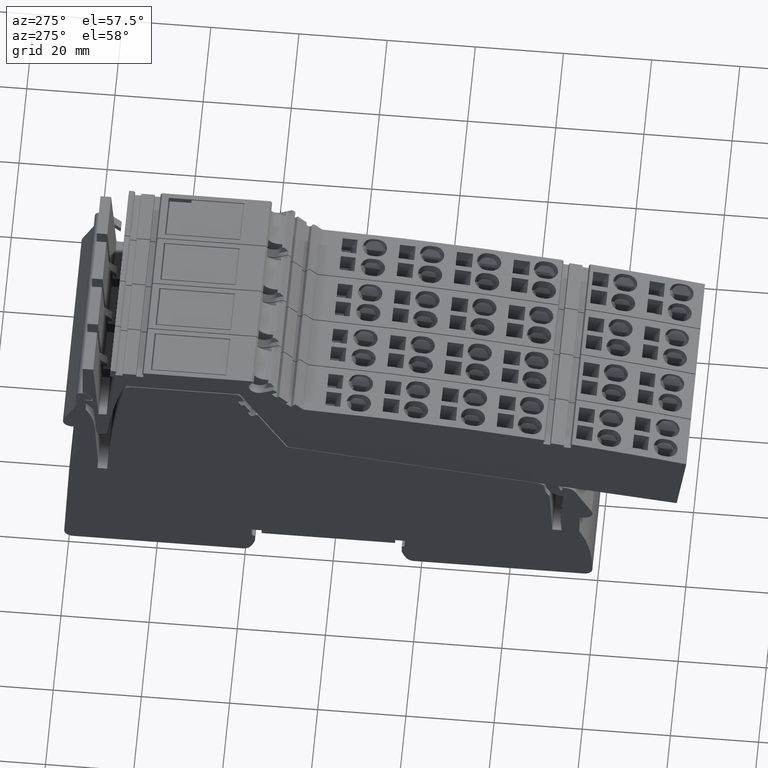
[diagram: clean part render]
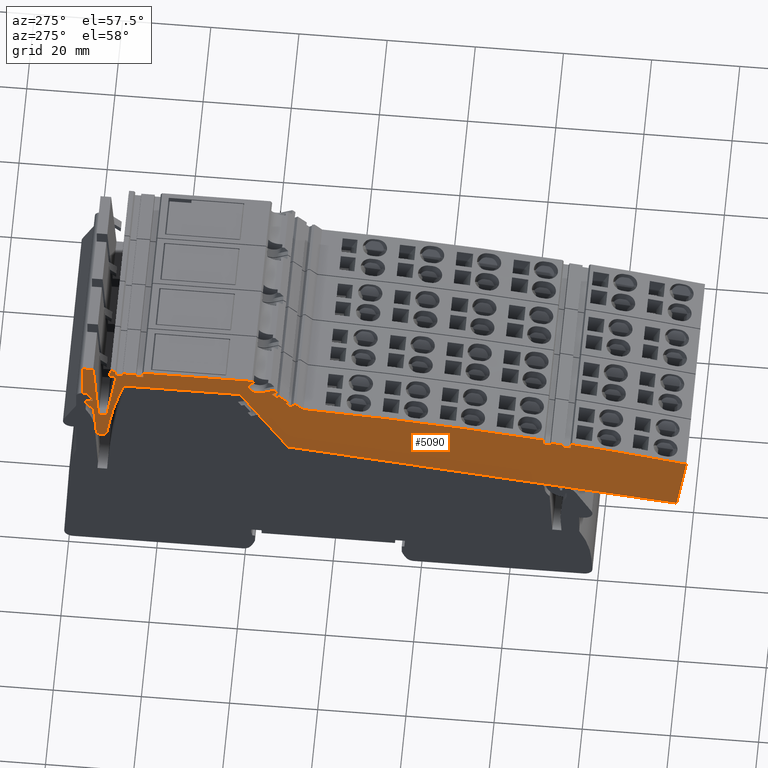
[diagram: same view with one face highlighted and labeled with its STEP entity id]
A machine part, auxiliary view. The second image highlights one B-rep face of the part: STEP entity #5090.
In plain terms, the highlighted planar face has unit normal (-1, 0, 0).
Its self-contained STEP definition (entity closure, byte-faithful):
#10=CARTESIAN_POINT('',(119.397054029924,63.6873748228642,-47.425));
#20=DIRECTION('',(0.,0.,-1.));
#30=DIRECTION('',(-1.,0.,0.));
#40=AXIS2_PLACEMENT_3D('',#10,#20,#30);
#50=PLANE('',#40);
#60=CARTESIAN_POINT('',(-3.14453621655468,-5.81476390429314,
-47.4250000000002));
#70=DIRECTION('',(0.130526192220205,-0.99144486137379,
-7.64748233166608E-34));
#80=VECTOR('',#70,1.);
#90=LINE('',#60,#80);
#100=CARTESIAN_POINT('',(-12.2138915265983,63.0738289916539,
-47.4250000000003));
#110=VERTEX_POINT('',#100);
#120=CARTESIAN_POINT('',(-10.0205226234212,46.4135381246434,
-47.4250000000003));
#130=VERTEX_POINT('',#120);
#140=EDGE_CURVE('',#110,#130,#90,.T.);
#150=ORIENTED_EDGE('',*,*,#140,.F.);
#160=CARTESIAN_POINT('',(73.6574236765249,57.4299487480429,
-47.4250000000002));
#170=DIRECTION('',(0.991444861373768,0.130526192220376,
2.46519032881566E-32));
#180=VECTOR('',#170,1.);
#190=LINE('',#160,#180);
#200=CARTESIAN_POINT('',(78.1684977957757,58.0238429226456,
-47.4250000000002));
#210=VERTEX_POINT('',#200);
#220=EDGE_CURVE('',#130,#210,#190,.T.);
#230=ORIENTED_EDGE('',*,*,#220,.F.);
#240=CARTESIAN_POINT('',(84.2029640194473,69.3730232537479,
-47.4250000000002));
#250=DIRECTION('',(0.469471562785745,0.882947592859004,
1.98252351633152E-18));
#260=VECTOR('',#250,1.);
#270=LINE('',#240,#260);
#280=CARTESIAN_POINT('',(89.0777240818256,78.5411135152798,
-47.4250000000003));
#290=VERTEX_POINT('',#280);
#300=EDGE_CURVE('',#210,#290,#270,.T.);
#310=ORIENTED_EDGE('',*,*,#300,.F.);
#320=CARTESIAN_POINT('',(70.878086107936,78.5411135152768,
-47.4250000000002));
#330=DIRECTION('',(1.,1.64951385883683E-13,1.14423563262215E-17));
#340=VECTOR('',#330,1.);
#350=LINE('',#320,#340);
#360=CARTESIAN_POINT('',(115.300602323951,78.5411135152842,
-47.4250000000002));
#370=VERTEX_POINT('',#360);
#380=EDGE_CURVE('',#290,#370,#350,.T.);
#390=ORIENTED_EDGE('',*,*,#380,.F.);
#400=CARTESIAN_POINT('',(14.9456973462107,48.6917743784001,
-47.4250000000003));
#410=DIRECTION('',(0.,0.,1.));
#420=DIRECTION('',(0.991444861373789,0.130526192220215,
-2.46519032881566E-32));
#430=AXIS2_PLACEMENT_3D('',#400,#410,#420);
#440=CIRCLE('',#430,104.7);
#450=CARTESIAN_POINT('',(118.749974332046,62.3578667038566,
-47.4250000000002));
#460=VERTEX_POINT('',#450);
#470=EDGE_CURVE('',#460,#370,#440,.T.);
#480=ORIENTED_EDGE('',*,*,#470,.T.);
#490=CARTESIAN_POINT('',(117.253565857008,73.7242175324348,
-47.4250000000002));
#500=DIRECTION('',(-0.130526192220215,0.991444861373789,
2.35317066351981E-33));
#510=VECTOR('',#500,1.);
#520=LINE('',#490,#510);
#530=CARTESIAN_POINT('',(119.252926235563,58.5375677142193,
-47.4250000000002));
#540=VERTEX_POINT('',#530);
#550=EDGE_CURVE('',#540,#460,#520,.T.);
#560=ORIENTED_EDGE('',*,*,#550,.T.);
#570=CARTESIAN_POINT('',(120.442660069212,58.6941991448836,
-47.4250000000003));
#580=DIRECTION('',(-2.46519032881566E-32,8.0118685686509E-32,1.));
#590=DIRECTION('',(0.991444861373789,0.130526192220215,
-2.46519032881566E-32));
#600=AXIS2_PLACEMENT_3D('',#570,#580,#590);
#610=CIRCLE('',#600,1.2);
#620=CARTESIAN_POINT('',(121.640090777098,58.6157153898078,
-47.4250000000002));
#630=VERTEX_POINT('',#620);
#640=EDGE_CURVE('',#540,#630,#610,.T.);
#650=ORIENTED_EDGE('',*,*,#640,.F.);
#660=CARTESIAN_POINT('',(122.677154255972,74.4382464910455,
-47.4250000000002));
#670=DIRECTION('',(0.0654031292299692,0.997858923238615,
2.18873597126985E-17));
#680=VECTOR('',#670,1.);
#690=LINE('',#660,#680);
#700=CARTESIAN_POINT('',(122.252118914927,67.9534603233625,
-47.4250000000002));
#710=VERTEX_POINT('',#700);
#720=EDGE_CURVE('',#630,#710,#690,.T.);
#730=ORIENTED_EDGE('',*,*,#720,.F.);
#740=CARTESIAN_POINT('',(65.194211177919,-0.045506208148737,
-47.4250000000002));
#750=DIRECTION('',(-0.642787609686413,-0.766044443119084,0.));
#760=VECTOR('',#750,1.);
#770=LINE('',#740,#760);
#780=CARTESIAN_POINT('',(124.130631128015,70.1921840020429,
-47.4250000000002));
#790=VERTEX_POINT('',#780);
#800=EDGE_CURVE('',#790,#710,#770,.T.);
#810=ORIENTED_EDGE('',*,*,#800,.T.);
#820=CARTESIAN_POINT('',(124.130631128027,-0.0455062081390309,
-47.4250000000002));
#830=DIRECTION('',(1.64895874732451E-13,-1.,0.));
#840=VECTOR('',#830,1.);
#850=LINE('',#820,#840);
#860=CARTESIAN_POINT('',(124.130631128015,71.3411135152857,
-47.4250000000002));
#870=VERTEX_POINT('',#860);
#880=EDGE_CURVE('',#870,#790,#850,.T.);
#890=ORIENTED_EDGE('',*,*,#880,.T.);
#900=CARTESIAN_POINT('',(71.8259840905664,71.3411135152774,
-47.4250000000002));
#910=DIRECTION('',(-1.,-1.58900670399476E-13,2.46519032881566E-32));
#920=VECTOR('',#910,1.);
#930=LINE('',#900,#920);
#940=CARTESIAN_POINT('',(122.474157435942,71.3411135152855,
-47.4250000000002));
#950=VERTEX_POINT('',#940);
#960=EDGE_CURVE('',#870,#950,#930,.T.);
#970=ORIENTED_EDGE('',*,*,#960,.F.);
#980=CARTESIAN_POINT('',(122.677154255972,74.4382464910455,
-47.4250000000002));
#990=DIRECTION('',(-0.0654031292299649,-0.997858923238615,
-2.18873597126979E-17));
#1000=VECTOR('',#990,1.);
#1010=LINE('',#980,#1000);
#1020=CARTESIAN_POINT('',(122.533322986182,72.2438053734526,
-47.4250000000002));
#1030=VERTEX_POINT('',#1020);
#1040=EDGE_CURVE('',#1030,#950,#1010,.T.);
#1050=ORIENTED_EDGE('',*,*,#1040,.T.);
#1060=CARTESIAN_POINT('',(77.6200827099972,27.3305650972566,
-47.4250000000003));
#1070=DIRECTION('',(0.707106781186456,0.707106781186639,
-2.44267117772998E-17));
#1080=VECTOR('',#1070,1.);
#1090=LINE('',#1060,#1080);
#1100=CARTESIAN_POINT('',(124.730631128015,74.4411135152858,
-47.4250000000002));
#1110=VERTEX_POINT('',#1100);
#1120=EDGE_CURVE('',#1030,#1110,#1090,.T.);
#1130=ORIENTED_EDGE('',*,*,#1120,.F.);
#1140=CARTESIAN_POINT('',(124.730631128014,74.7085918499881,
-47.4250000000002));
#1150=DIRECTION('',(-1.62092561595273E-13,1.,1.38777878078148E-17));
#1160=VECTOR('',#1150,1.);
#1170=LINE('',#1140,#1160);
#1180=CARTESIAN_POINT('',(124.730631128013,84.4411135152858,
-47.4250000000002));
#1190=VERTEX_POINT('',#1180);
#1200=EDGE_CURVE('',#1110,#1190,#1170,.T.);
#1210=ORIENTED_EDGE('',*,*,#1200,.F.);
#1220=CARTESIAN_POINT('',(70.1013363721694,84.4411135152763,
-47.4250000000002));
#1230=DIRECTION('',(-1.,-1.73999703534378E-13,-1.14423563262215E-17));
#1240=VECTOR('',#1230,1.);
#1250=LINE('',#1220,#1240);
#1260=CARTESIAN_POINT('',(122.330631128012,84.4411135152853,
-47.4250000000002));
#1270=VERTEX_POINT('',#1260);
#1280=EDGE_CURVE('',#1190,#1270,#1250,.T.);
#1290=ORIENTED_EDGE('',*,*,#1280,.F.);
#1300=CARTESIAN_POINT('',(116.793085509801,-0.0455062081402389,
-47.4250000000002));
#1310=DIRECTION('',(0.0654031292299576,0.997858923238616,0.));
#1320=VECTOR('',#1310,1.);
#1330=LINE('',#1300,#1320);
#1340=CARTESIAN_POINT('',(121.118077065934,65.9411135152853,
-47.4250000000002));
#1350=VERTEX_POINT('',#1340);
#1360=EDGE_CURVE('',#1350,#1270,#1330,.T.);
#1370=ORIENTED_EDGE('',*,*,#1360,.T.);
#1380=CARTESIAN_POINT('',(-0.345653967707037,65.9411135152659,
-47.4250000000002));
#1390=DIRECTION('',(1.,1.59622315365482E-13,0.));
#1400=VECTOR('',#1390,1.);
#1410=LINE('',#1380,#1400);
#1420=CARTESIAN_POINT('',(119.286859900429,65.941113515285,
-47.4250000000002));
#1430=VERTEX_POINT('',#1420);
#1440=EDGE_CURVE('',#1430,#1350,#1410,.T.);
#1450=ORIENTED_EDGE('',*,*,#1440,.T.);
#1460=CARTESIAN_POINT('',(127.974163194379,-0.0455062081384057,
-47.4250000000002));
#1470=DIRECTION('',(0.130526192220215,-0.991444861373789,
-2.35317066351981E-33));
#1480=VECTOR('',#1470,1.);
#1490=LINE('',#1460,#1480);
#1500=CARTESIAN_POINT('',(117.16725468927,82.0411135152854,
-47.4250000000002));
#1510=VERTEX_POINT('',#1500);
#1520=EDGE_CURVE('',#1510,#1430,#1490,.T.);
#1530=ORIENTED_EDGE('',*,*,#1520,.T.);
#1540=CARTESIAN_POINT('',(70.4173023663801,82.0411135152725,
-47.4250000000002));
#1550=DIRECTION('',(-1.,-2.76584311009742E-13,-1.14423563262215E-17));
#1560=VECTOR('',#1550,1.);
#1570=LINE('',#1540,#1560);
#1580=CARTESIAN_POINT('',(118.58793543877,82.0411135152858,
-47.4250000000002));
#1590=VERTEX_POINT('',#1580);
#1600=EDGE_CURVE('',#1590,#1510,#1570,.T.);
#1610=ORIENTED_EDGE('',*,*,#1600,.T.);
#1620=CARTESIAN_POINT('',(119.116974323162,73.9695399110298,
-47.4250000000002));
#1630=DIRECTION('',(-0.0654031292302853,0.997858923238594,
-1.07067800097519E-18));
#1640=VECTOR('',#1630,1.);
#1650=LINE('',#1620,#1640);
#1660=CARTESIAN_POINT('',(118.430631128013,84.4411135152847,
-47.4250000000002));
#1670=VERTEX_POINT('',#1660);
#1680=EDGE_CURVE('',#1590,#1670,#1650,.T.);
#1690=ORIENTED_EDGE('',*,*,#1680,.F.);
#1700=CARTESIAN_POINT('',(70.1013363721694,84.4411135152765,
-47.4250000000002));
#1710=DIRECTION('',(-1.,-1.68226543806327E-13,-1.14423563262216E-17));
#1720=VECTOR('',#1710,1.);
#1730=LINE('',#1700,#1720);
#1740=CARTESIAN_POINT('',(117.326819149548,84.4411135152845,
-47.4250000000002));
#1750=VERTEX_POINT('',#1740);
#1760=EDGE_CURVE('',#1670,#1750,#1730,.T.);
#1770=ORIENTED_EDGE('',*,*,#1760,.F.);
#1780=CARTESIAN_POINT('',(110.636452172055,72.85305798899,
-47.4250000000003));
#1790=DIRECTION('',(0.50000000000011,0.866025403784375,
-2.20343974524871E-17));
#1800=VECTOR('',#1790,1.);
#1810=LINE('',#1780,#1800);
#1820=CARTESIAN_POINT('',(117.020823506878,83.911113515286,
-47.4250000000002));
#1830=VERTEX_POINT('',#1820);
#1840=EDGE_CURVE('',#1830,#1750,#1810,.T.);
#1850=ORIENTED_EDGE('',*,*,#1840,.T.);
#1860=CARTESIAN_POINT('',(70.1711121958593,83.9111135155156,
-47.4250000000002));
#1870=DIRECTION('',(-1.,4.90199547620307E-12,-1.14423563262215E-17));
#1880=VECTOR('',#1870,1.);
#1890=LINE('',#1860,#1880);
#1900=CARTESIAN_POINT('',(117.293131128013,83.9111135152846,
-47.4250000000002));
#1910=VERTEX_POINT('',#1900);
#1920=EDGE_CURVE('',#1910,#1830,#1890,.T.);
#1930=ORIENTED_EDGE('',*,*,#1920,.T.);
#1940=CARTESIAN_POINT('',(117.293131128015,73.7294263991807,
-47.4250000000002));
#1950=DIRECTION('',(-2.19824158875781E-13,1.,1.38777878078077E-17));
#1960=VECTOR('',#1950,1.);
#1970=LINE('',#1940,#1960);
#1980=CARTESIAN_POINT('',(117.293131128013,82.8411135152847,
-47.4250000000002));
#1990=VERTEX_POINT('',#1980);
#2000=EDGE_CURVE('',#1990,#1910,#1970,.T.);
#2010=ORIENTED_EDGE('',*,*,#2000,.T.);
#2020=CARTESIAN_POINT('',(70.31198036831,82.8411135152732,
-47.4250000000002));
#2030=DIRECTION('',(1.,2.45498066320238E-13,1.14423563262215E-17));
#2040=VECTOR('',#2030,1.);
#2050=LINE('',#2020,#2040);
#2060=CARTESIAN_POINT('',(115.696247625657,82.8411135152843,
-47.4250000000002));
#2070=VERTEX_POINT('',#2060);
#2080=EDGE_CURVE('',#2070,#1990,#2050,.T.);
#2090=ORIENTED_EDGE('',*,*,#2080,.T.);
#2100=CARTESIAN_POINT('',(116.50252325529,73.6253408981241,
-47.4250000000002));
#2110=DIRECTION('',(0.0871557427475104,-0.996194698091758,
3.73460439312547E-18));
#2120=VECTOR('',#2110,1.);
#2130=LINE('',#2100,#2120);
#2140=CARTESIAN_POINT('',(115.630631128013,83.5911135152845,
-47.4250000000002));
#2150=VERTEX_POINT('',#2140);
#2160=EDGE_CURVE('',#2150,#2070,#2130,.T.);
#2170=ORIENTED_EDGE('',*,*,#2160,.T.);
#2180=CARTESIAN_POINT('',(70.2132409951187,83.5911135152778,
-47.4250000000002));
#2190=DIRECTION('',(1.,1.46216372343133E-13,1.14423563262215E-17));
#2200=VECTOR('',#2190,1.);
#2210=LINE('',#2180,#2200);
#2220=CARTESIAN_POINT('',(112.630631128013,83.591113515284,
-47.4250000000002));
#2230=VERTEX_POINT('',#2220);
#2240=EDGE_CURVE('',#2230,#2150,#2210,.T.);
#2250=ORIENTED_EDGE('',*,*,#2240,.T.);
#2260=CARTESIAN_POINT('',(111.703462939001,72.9935326214112,
-47.4250000000002));
#2270=DIRECTION('',(0.0871557427475897,0.996194698091752,
1.06734982970826E-17));
#2280=VECTOR('',#2270,1.);
#2290=LINE('',#2260,#2280);
#2300=CARTESIAN_POINT('',(112.565014630368,82.8411135152841,
-47.4250000000002));
#2310=VERTEX_POINT('',#2300);
#2320=EDGE_CURVE('',#2310,#2230,#2290,.T.);
#2330=ORIENTED_EDGE('',*,*,#2320,.T.);
#2340=CARTESIAN_POINT('',(70.3119803683101,82.8411135152721,
-47.4250000000002));
#2350=DIRECTION('',(1.,2.84022805274731E-13,1.14423563262215E-17));
#2360=VECTOR('',#2350,1.);
#2370=LINE('',#2340,#2360);
#2380=CARTESIAN_POINT('',(110.968131128013,82.8411135152836,
-47.4250000000002));
#2390=VERTEX_POINT('',#2380);
#2400=EDGE_CURVE('',#2390,#2310,#2370,.T.);
#2410=ORIENTED_EDGE('',*,*,#2400,.T.);
#2420=CARTESIAN_POINT('',(110.968131128013,72.8967243519392,
-47.4250000000002));
#2430=DIRECTION('',(7.14706072102445E-14,-1.,-1.38777878078259E-17));
#2440=VECTOR('',#2430,1.);
#2450=LINE('',#2420,#2440);
#2460=CARTESIAN_POINT('',(110.968131128013,83.9111135152838,
-47.4250000000002));
#2470=VERTEX_POINT('',#2460);
#2480=EDGE_CURVE('',#2470,#2390,#2450,.T.);
#2490=ORIENTED_EDGE('',*,*,#2480,.T.);
#2500=CARTESIAN_POINT('',(70.1711121959183,83.9111135150674,
-47.4250000000002));
#2510=DIRECTION('',(-1.,-5.30228638773167E-12,-1.14423563262216E-17));
#2520=VECTOR('',#2510,1.);
#2530=LINE('',#2500,#2520);
#2540=CARTESIAN_POINT('',(111.240438749148,83.9111135152852,
-47.4250000000002));
#2550=VERTEX_POINT('',#2540);
#2560=EDGE_CURVE('',#2550,#2470,#2530,.T.);
#2570=ORIENTED_EDGE('',*,*,#2560,.T.);
#2580=CARTESIAN_POINT('',(117.131150620808,73.7081012608464,
-47.4250000000003));
#2590=DIRECTION('',(0.500000000000961,-0.866025403783883,
3.34767537788399E-17));
#2600=VECTOR('',#2590,1.);
#2610=LINE('',#2580,#2600);
#2620=CARTESIAN_POINT('',(110.934443106477,84.4411135152833,
-47.4250000000002));
#2630=VERTEX_POINT('',#2620);
#2640=EDGE_CURVE('',#2630,#2550,#2610,.T.);
#2650=ORIENTED_EDGE('',*,*,#2640,.T.);
#2660=CARTESIAN_POINT('',(-0.345653967710078,84.441113515265,
-47.4250000000002));
#2670=DIRECTION('',(-1.,-1.64895874732451E-13,0.));
#2680=VECTOR('',#2670,1.);
#2690=LINE('',#2660,#2680);
#2700=CARTESIAN_POINT('',(86.3391365011984,84.4411135152793,
-47.4250000000002));
#2710=VERTEX_POINT('',#2700);
#2720=EDGE_CURVE('',#2630,#2710,#2690,.T.);
#2730=ORIENTED_EDGE('',*,*,#2720,.F.);
#2740=CARTESIAN_POINT('',(37.560763860968,-0.0455062081532986,
-47.4250000000003));
#2750=DIRECTION('',(-0.499999999999885,-0.866025403784505,
-2.46519032881566E-32));
#2760=VECTOR('',#2750,1.);
#2770=LINE('',#2740,#2760);
#2780=CARTESIAN_POINT('',(85.9777088510533,83.8151024619674,
-47.4250000000002));
#2790=VERTEX_POINT('',#2780);
#2800=EDGE_CURVE('',#2710,#2790,#2770,.T.);
#2810=ORIENTED_EDGE('',*,*,#2800,.F.);
#2820=CARTESIAN_POINT('',(84.902708851053,81.9531478438304,
-47.4250000000002));
#2830=DIRECTION('',(0.,0.,1.));
#2840=DIRECTION('',(0.991444861373789,0.130526192220215,
-2.46519032881566E-32));
#2850=AXIS2_PLACEMENT_3D('',#2820,#2830,#2840);
#2860=CIRCLE('',#2850,2.15000000000051);
#2870=CARTESIAN_POINT('',(83.9099493325984,80.0460745524967,
-47.4250000000002));
#2880=VERTEX_POINT('',#2870);
#2890=EDGE_CURVE('',#2880,#2790,#2860,.T.);
#2900=ORIENTED_EDGE('',*,*,#2890,.T.);
#2910=CARTESIAN_POINT('',(-0.345653967716601,123.906765454984,
-47.4250000000002));
#2920=DIRECTION('',(0.88701083317829,-0.461748613234903,
1.23259516440783E-32));
#2930=VECTOR('',#2920,1.);
#2940=LINE('',#2910,#2930);
#2950=CARTESIAN_POINT('',(81.3667520865037,81.3699792418671,
-47.4250000000002));
#2960=VERTEX_POINT('',#2950);
#2970=EDGE_CURVE('',#2960,#2880,#2940,.T.);
#2980=ORIENTED_EDGE('',*,*,#2970,.T.);
#2990=CARTESIAN_POINT('',(5.44558365918665,-0.0455062081585993,
-47.4250000000002));
#3000=DIRECTION('',(-0.681998360062242,-0.731353701619409,
-1.23259516440783E-32));
#3010=VECTOR('',#3000,1.);
#3020=LINE('',#2990,#3010);
#3030=CARTESIAN_POINT('',(80.7021715079291,80.6573038241132,
-47.4250000000002));
#3040=VERTEX_POINT('',#3030);
#3050=EDGE_CURVE('',#2960,#3040,#3020,.T.);
#3060=ORIENTED_EDGE('',*,*,#3050,.F.);
#3070=CARTESIAN_POINT('',(84.1540895058051,69.3665888019586,
-47.4250000000002));
#3080=DIRECTION('',(-0.292371704722518,0.956304755963102,
5.82816236513809E-18));
#3090=VECTOR('',#3080,1.);
#3100=LINE('',#3070,#3090);
#3110=CARTESIAN_POINT('',(80.881100443299,80.0720536473354,
-47.4250000000002));
#3120=VERTEX_POINT('',#3110);
#3130=EDGE_CURVE('',#3120,#3040,#3100,.T.);
#3140=ORIENTED_EDGE('',*,*,#3130,.T.);
#3150=CARTESIAN_POINT('',(71.9389824098373,70.4828060669452,
-47.4250000000002));
#3160=DIRECTION('',(-0.681998360064079,-0.731353701617697,
-2.5396961285377E-19));
#3170=VECTOR('',#3160,1.);
#3180=LINE('',#3150,#3170);
#3190=CARTESIAN_POINT('',(81.0668137943461,80.2712068340312,
-47.4250000000002));
#3200=VERTEX_POINT('',#3190);
#3210=EDGE_CURVE('',#3200,#3120,#3180,.T.);
#3220=ORIENTED_EDGE('',*,*,#3210,.T.);
#3230=CARTESIAN_POINT('',(91.6958404281377,70.3594791470669,
-47.4250000000003));
#3240=DIRECTION('',(-0.731353701619354,0.681998360062301,
-6.29825467579363E-18));
#3250=VECTOR('',#3240,1.);
#3260=LINE('',#3230,#3250);
#3270=CARTESIAN_POINT('',(81.8493622550788,79.5414685887646,
-47.4250000000002));
#3280=VERTEX_POINT('',#3270);
#3290=EDGE_CURVE('',#3280,#3200,#3260,.T.);
#3300=ORIENTED_EDGE('',*,*,#3290,.T.);
#3310=CARTESIAN_POINT('',(72.1199810828794,69.1079846517899,
-47.4250000000002));
#3320=DIRECTION('',(0.68199836006233,0.731353701619328,
2.53969612639594E-19));
#3330=VECTOR('',#3320,1.);
#3340=LINE('',#3310,#3330);
#3350=CARTESIAN_POINT('',(80.7602903252617,78.373581928262,
-47.4250000000002));
#3360=VERTEX_POINT('',#3350);
#3370=EDGE_CURVE('',#3360,#3280,#3340,.T.);
#3380=ORIENTED_EDGE('',*,*,#3370,.T.);
#3390=CARTESIAN_POINT('',(91.1156419260236,70.283094565167,
-47.4250000000003));
#3400=DIRECTION('',(0.788010753606857,-0.615661475325486,
4.09923168310491E-17));
#3410=VECTOR('',#3400,1.);
#3420=LINE('',#3390,#3410);
#3430=CARTESIAN_POINT('',(80.1670247052605,78.8370918298693,
-47.4250000000002));
#3440=VERTEX_POINT('',#3430);
#3450=EDGE_CURVE('',#3440,#3360,#3420,.T.);
#3460=ORIENTED_EDGE('',*,*,#3450,.T.);
#3470=CARTESIAN_POINT('',(71.9931128541153,70.0716445221975,
-47.4250000000003));
#3480=DIRECTION('',(0.681998360062334,0.731353701619324,
2.53969612640087E-19));
#3490=VECTOR('',#3480,1.);
#3500=LINE('',#3470,#3490);
#3510=CARTESIAN_POINT('',(78.1210296250738,76.6430307250118,
-47.4250000000002));
#3520=VERTEX_POINT('',#3510);
#3530=EDGE_CURVE('',#3520,#3440,#3500,.T.);
#3540=ORIENTED_EDGE('',*,*,#3530,.T.);
#3550=CARTESIAN_POINT('',(84.6177990291654,69.4276373188641,
-47.4250000000002));
#3560=DIRECTION('',(-0.66913060635868,0.743144825477554,
1.32187545408512E-18));
#3570=VECTOR('',#3560,1.);
#3580=LINE('',#3550,#3570);
#3590=CARTESIAN_POINT('',(78.6247945575012,76.0835430865249,
-47.4250000000002));
#3600=VERTEX_POINT('',#3590);
#3610=EDGE_CURVE('',#3600,#3520,#3580,.T.);
#3620=ORIENTED_EDGE('',*,*,#3610,.T.);
#3630=CARTESIAN_POINT('',(72.1199810828791,69.1079846517924,
-47.4250000000003));
#3640=DIRECTION('',(0.681998360062454,0.731353701619212,
2.53969612654767E-19));
#3650=VECTOR('',#3640,1.);
#3660=LINE('',#3630,#3650);
#3670=CARTESIAN_POINT('',(77.5357226276842,74.9156564260227,
-47.4250000000002));
#3680=VERTEX_POINT('',#3670);
#3690=EDGE_CURVE('',#3680,#3600,#3660,.T.);
#3700=ORIENTED_EDGE('',*,*,#3690,.T.);
#3710=CARTESIAN_POINT('',(83.5689755210371,69.2895570844904,
-47.4250000000002));
#3720=DIRECTION('',(0.731353701619354,-0.681998360062301,
6.29825467579363E-18));
#3730=VECTOR('',#3720,1.);
#3740=LINE('',#3710,#3730);
#3750=CARTESIAN_POINT('',(76.7531741669514,75.6453946712894,
-47.4250000000002));
#3760=VERTEX_POINT('',#3750);
#3770=EDGE_CURVE('',#3760,#3680,#3740,.T.);
#3780=ORIENTED_EDGE('',*,*,#3770,.T.);
#3790=CARTESIAN_POINT('',(71.9389824098392,70.4828060669312,
-47.4250000000002));
#3800=DIRECTION('',(-0.68199836006446,-0.731353701617341,
-2.53969612900522E-19));
#3810=VECTOR('',#3800,1.);
#3820=LINE('',#3790,#3810);
#3830=CARTESIAN_POINT('',(76.9388875179991,75.8445478579857,
-47.4250000000002));
#3840=VERTEX_POINT('',#3830);
#3850=EDGE_CURVE('',#3840,#3760,#3820,.T.);
#3860=ORIENTED_EDGE('',*,*,#3850,.T.);
#3870=CARTESIAN_POINT('',(71.0542353942646,77.2031268491942,
-47.4250000000002));
#3880=DIRECTION('',(0.974370064785282,-0.224951054343664,
3.6059170670998E-17));
#3890=VECTOR('',#3880,1.);
#3900=LINE('',#3870,#3890);
#3910=CARTESIAN_POINT('',(76.3425815296553,75.9822159428719,
-47.4250000000002));
#3920=VERTEX_POINT('',#3910);
#3930=EDGE_CURVE('',#3920,#3840,#3900,.T.);
#3940=ORIENTED_EDGE('',*,*,#3930,.T.);
#3950=CARTESIAN_POINT('',(71.8493288615166,71.1637923753217,
-47.4250000000002));
#3960=DIRECTION('',(-0.681998360062242,-0.731353701619409,
-2.53969612628871E-19));
#3970=VECTOR('',#3960,1.);
#3980=LINE('',#3950,#3970);
#3990=CARTESIAN_POINT('',(74.6334480827661,74.149394713171,
-47.4250000000002));
#4000=VERTEX_POINT('',#3990);
#4010=EDGE_CURVE('',#3920,#4000,#3980,.T.);
#4020=ORIENTED_EDGE('',*,*,#4010,.F.);
#4030=CARTESIAN_POINT('',(103.738798089514,-500.113505534603,
-47.4250000000003));
#4040=DIRECTION('',(0.,0.,1.));
#4050=DIRECTION('',(0.991444861373789,0.130526192220215,
-2.46519032881566E-32));
#4060=AXIS2_PLACEMENT_3D('',#4030,#4040,#4050);
#4070=CIRCLE('',#4060,575.);
#4080=CARTESIAN_POINT('',(20.0599333943351,68.7650822179384,
-47.4250000000002));
#4090=VERTEX_POINT('',#4080);
#4100=EDGE_CURVE('',#4000,#4090,#4070,.T.);
#4110=ORIENTED_EDGE('',*,*,#4100,.F.);
#4120=CARTESIAN_POINT('',(16.8367595917158,60.5040941878427,
-47.4250000000002));
#4130=DIRECTION('',(0.363481180557903,0.931601541100181,
-1.0997552478088E-17));
#4140=VECTOR('',#4130,1.);
#4150=LINE('',#4120,#4140);
#4160=CARTESIAN_POINT('',(19.8412025527106,68.2044755069367,
-47.4250000000002));
#4170=VERTEX_POINT('',#4160);
#4180=EDGE_CURVE('',#4170,#4090,#4150,.T.);
#4190=ORIENTED_EDGE('',*,*,#4180,.T.);
#4200=CARTESIAN_POINT('',(71.2058632644025,76.051398830992,
-47.4250000000002));
#4210=DIRECTION('',(-0.988531191077461,-0.151016834382716,
3.70508301048241E-19));
#4220=VECTOR('',#4210,1.);
#4230=LINE('',#4200,#4220);
#4240=CARTESIAN_POINT('',(20.1103871297699,68.2455985418586,
-47.4250000000002));
#4250=VERTEX_POINT('',#4240);
#4260=EDGE_CURVE('',#4250,#4170,#4230,.T.);
#4270=ORIENTED_EDGE('',*,*,#4260,.T.);
#4280=CARTESIAN_POINT('',(21.2051886940893,61.0792087897044,
-47.4250000000002));
#4290=DIRECTION('',(-0.151016834389133,0.98853119107648,
2.32245661692122E-18));
#4300=VECTOR('',#4290,1.);
#4310=LINE('',#4280,#4300);
#4320=CARTESIAN_POINT('',(20.2719751425662,67.1878701674069,
-47.4250000000002));
#4330=VERTEX_POINT('',#4320);
#4340=EDGE_CURVE('',#4330,#4250,#4310,.T.);
#4350=ORIENTED_EDGE('',*,*,#4340,.T.);
#4360=CARTESIAN_POINT('',(71.345556209182,74.9903255711658,
-47.4250000000002));
#4370=DIRECTION('',(0.988531191076475,0.151016834389167,
-3.70508301168912E-19));
#4380=VECTOR('',#4370,1.);
#4390=LINE('',#4360,#4380);
#4400=CARTESIAN_POINT('',(18.6934059919722,66.9467138759929,
-47.4250000000002));
#4410=VERTEX_POINT('',#4400);
#4420=EDGE_CURVE('',#4410,#4330,#4390,.T.);
#4430=ORIENTED_EDGE('',*,*,#4420,.T.);
#4440=CARTESIAN_POINT('',(20.1558559128914,60.9410615082591,
-47.4250000000002));
#4450=DIRECTION('',(0.236598339928248,-0.971607547080197,
8.15825325755319E-18));
#4460=VECTOR('',#4450,1.);
#4470=LINE('',#4440,#4460);
#4480=CARTESIAN_POINT('',(18.5152794116099,67.6782030735422,
-47.4250000000002));
#4490=VERTEX_POINT('',#4480);
#4500=EDGE_CURVE('',#4490,#4410,#4470,.T.);
#4510=ORIENTED_EDGE('',*,*,#4500,.T.);
#4520=CARTESIAN_POINT('',(71.2476405936518,75.7340685105285,
-47.4250000000002));
#4530=DIRECTION('',(0.988531191076482,0.151016834389125,
-3.70508301168123E-19));
#4540=VECTOR('',#4530,1.);
#4550=LINE('',#4520,#4540);
#4560=CARTESIAN_POINT('',(15.5496858383803,67.2251525703748,
-47.4250000000002));
#4570=VERTEX_POINT('',#4560);
#4580=EDGE_CURVE('',#4570,#4490,#4550,.T.);
#4590=ORIENTED_EDGE('',*,*,#4580,.T.);
#4600=CARTESIAN_POINT('',(15.9898341138957,60.3925943334171,
-47.4250000000002));
#4610=DIRECTION('',(-0.0642859995533599,0.997931515817306,
-9.33869096267743E-19));
#4620=VECTOR('',#4610,1.);
#4630=LINE('',#4600,#4620);
#4640=CARTESIAN_POINT('',(15.5980845096013,66.4738449813096,
-47.4250000000002));
#4650=VERTEX_POINT('',#4640);
#4660=EDGE_CURVE('',#4650,#4570,#4630,.T.);
#4670=ORIENTED_EDGE('',*,*,#4660,.T.);
#4680=CARTESIAN_POINT('',(71.3455562091826,74.9903255711614,
-47.4250000000002));
#4690=DIRECTION('',(0.988531191076487,0.151016834389088,
-3.70508301167482E-19));
#4700=VECTOR('',#4690,1.);
#4710=LINE('',#4680,#4700);
#4720=CARTESIAN_POINT('',(14.0195153590075,66.2326886898958,
-47.4250000000002));
#4730=VERTEX_POINT('',#4720);
#4740=EDGE_CURVE('',#4730,#4650,#4710,.T.);
#4750=ORIENTED_EDGE('',*,*,#4740,.T.);
#4760=CARTESIAN_POINT('',(14.9329565721103,60.2534537653969,
-47.4250000000002));
#4770=DIRECTION('',(0.151016834389146,-0.988531191076478,
-2.32245661691962E-18));
#4780=VECTOR('',#4770,1.);
#4790=LINE('',#4760,#4780);
#4800=CARTESIAN_POINT('',(13.8579273462111,67.2904170643476,
-47.4250000000002));
#4810=VERTEX_POINT('',#4800);
#4820=EDGE_CURVE('',#4810,#4730,#4790,.T.);
#4830=ORIENTED_EDGE('',*,*,#4820,.T.);
#4840=CARTESIAN_POINT('',(71.2058632643823,76.0513988311455,
-47.4250000000002));
#4850=DIRECTION('',(-0.988531191076952,-0.151016834386049,
3.7050830111061E-19));
#4860=VECTOR('',#4850,1.);
#4870=LINE('',#4840,#4860);
#4880=CARTESIAN_POINT('',(14.1271119232718,67.3315400992707,
-47.4250000000002));
#4890=VERTEX_POINT('',#4880);
#4900=EDGE_CURVE('',#4890,#4810,#4870,.T.);
#4910=ORIENTED_EDGE('',*,*,#4900,.T.);
#4920=CARTESIAN_POINT('',(19.3311971972878,60.8324931286926,
-47.4250000000002));
#4930=DIRECTION('',(0.625050010518107,-0.780584706711138,
2.1035385032723E-17));
#4940=VECTOR('',#4930,1.);
#4950=LINE('',#4920,#4940);
#4960=CARTESIAN_POINT('',(13.7509776908229,67.8012699202121,
-47.4250000000002));
#4970=VERTEX_POINT('',#4960);
#4980=EDGE_CURVE('',#4970,#4890,#4950,.T.);
#4990=ORIENTED_EDGE('',*,*,#4980,.T.);
#5000=CARTESIAN_POINT('',(103.738798089514,-500.113505534603,
-47.4250000000003));
#5010=DIRECTION('',(0.,0.,1.));
#5020=DIRECTION('',(0.991444861373789,0.130526192220215,
-2.46519032881566E-32));
#5030=AXIS2_PLACEMENT_3D('',#5000,#5010,#5020);
#5040=CIRCLE('',#5030,575.);
#5050=EDGE_CURVE('',#4970,#110,#5040,.T.);
#5060=ORIENTED_EDGE('',*,*,#5050,.F.);
#5070=EDGE_LOOP('',(#5060,#4990,#4910,#4830,#4750,#4670,#4590,#4510,
#4430,#4350,#4270,#4190,#4110,#4020,#3940,#3860,#3780,#3700,#3620,#3540,
#3460,#3380,#3300,#3220,#3140,#3060,#2980,#2900,#2810,#2730,#2650,#2570,
#2490,#2410,#2330,#2250,#2170,#2090,#2010,#1930,#1850,#1770,#1690,#1610,
#1530,#1450,#1370,#1290,#1210,#1130,#1050,#970,#890,#810,#730,#650,#560,
#480,#390,#310,#230,#150));
#5080=FACE_OUTER_BOUND('',#5070,.T.);
#5090=ADVANCED_FACE('',(#5080),#50,.T.);